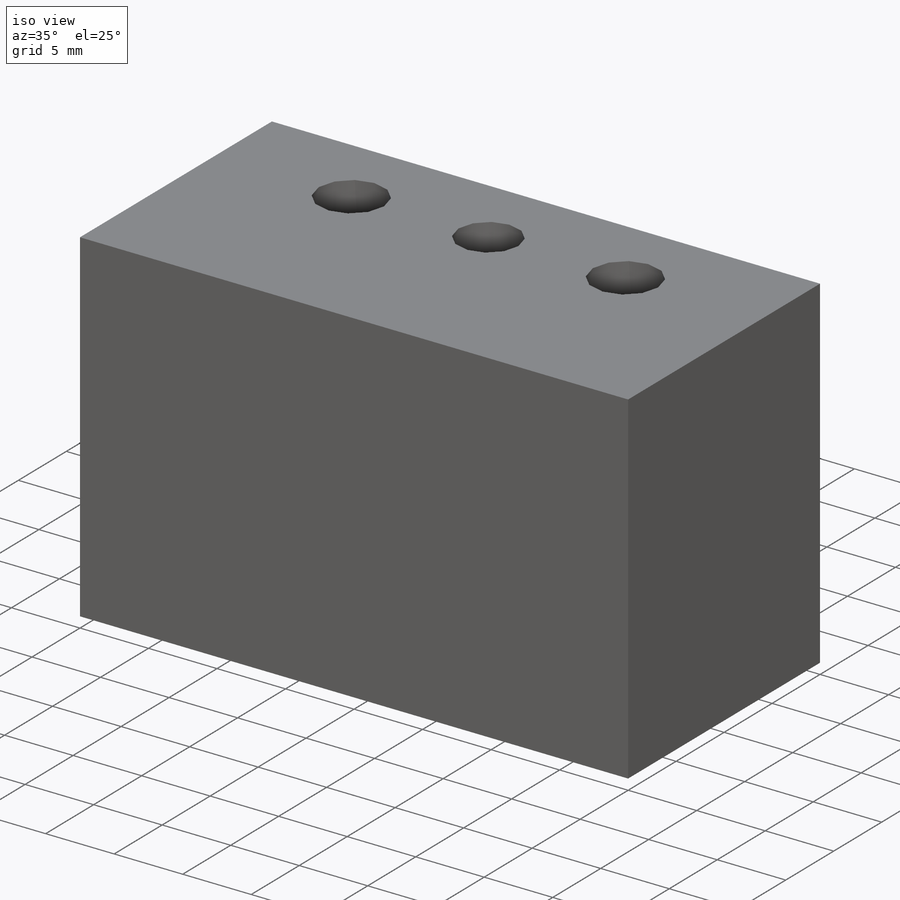
[diagram: iso view]
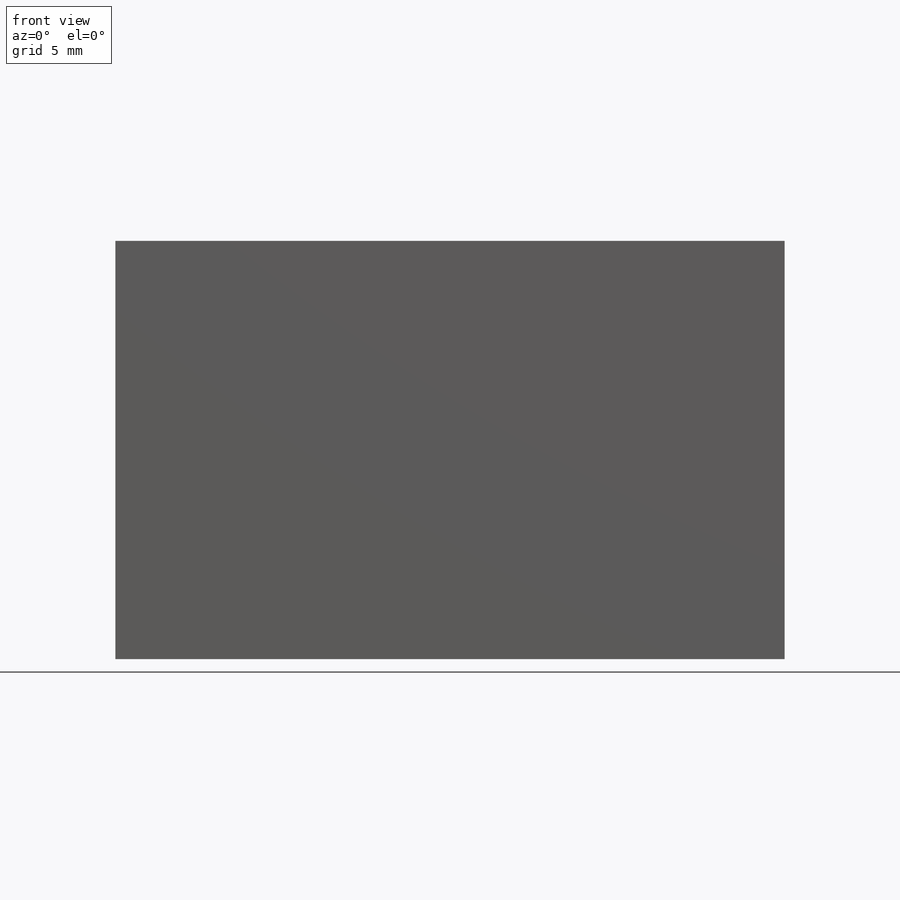
[diagram: front view]
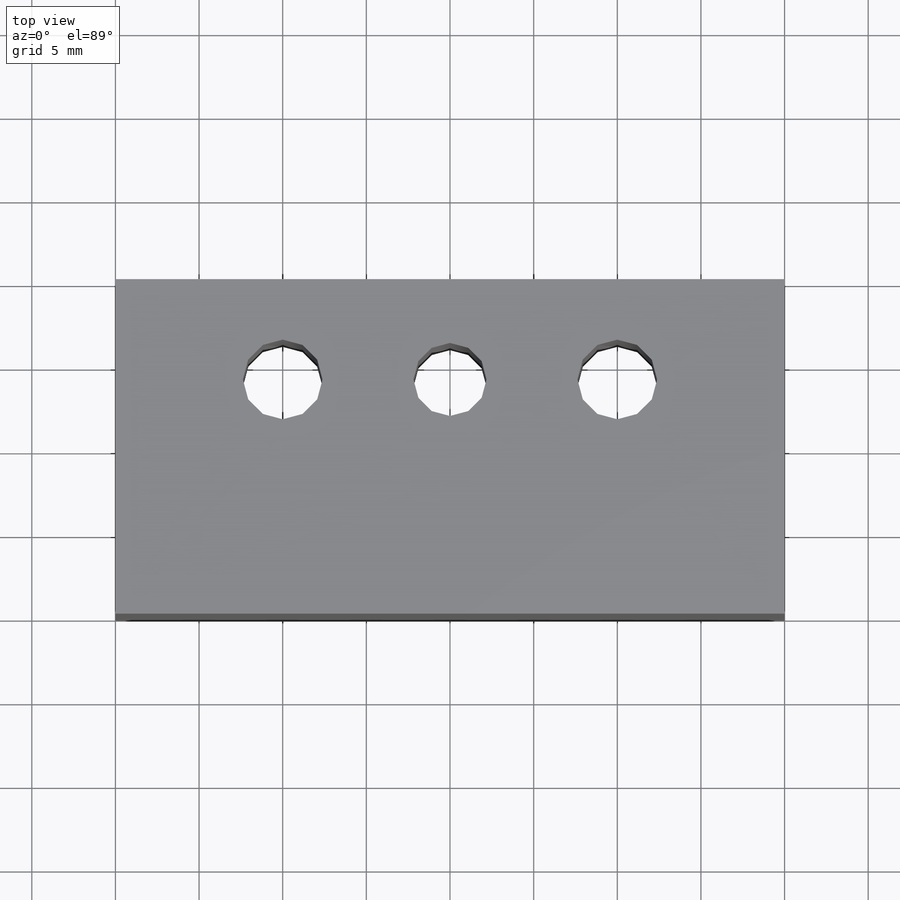
[diagram: top view]
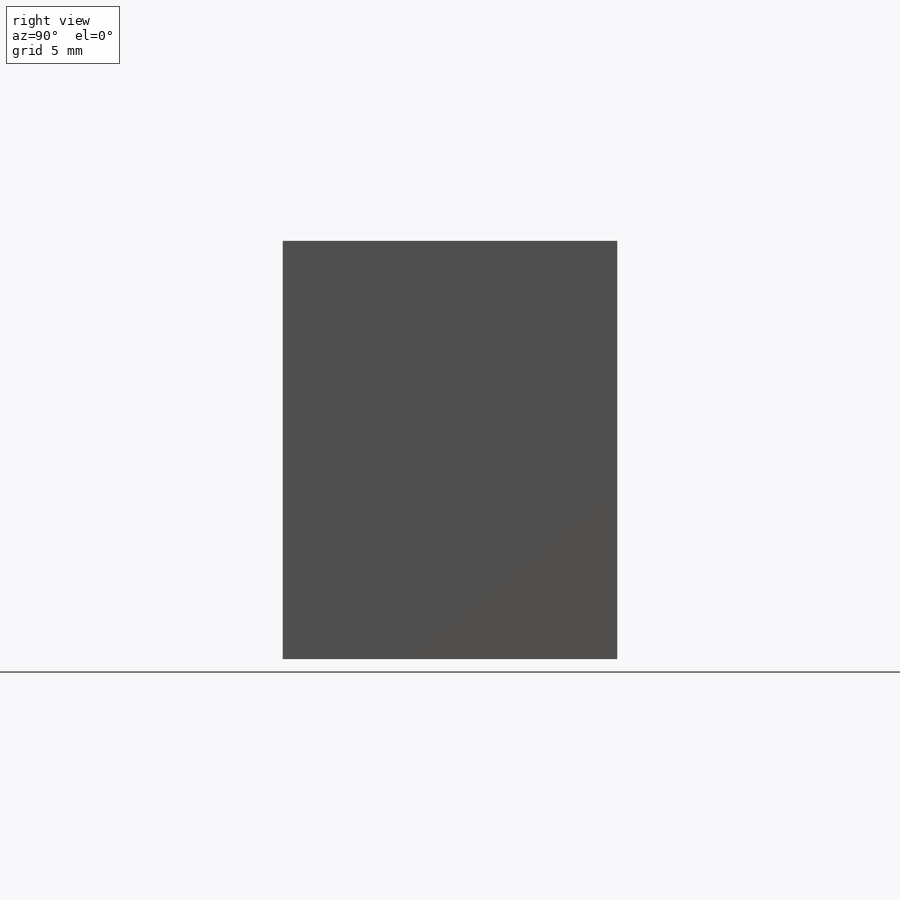
[diagram: right view]
SOLIDWORKS PART (.sldprt)
format: sldprt  version: not decoded by parser v0  size: 176,128 bytes
history: native  units: mm
features: sketch x3, material x1, extrude x1, hole x1 (+11 scaffold rows collapsed)
feature tree (17):
  scaffold x11  (default folders/planes/origin — collapsed)
  material  "Material <not specified>"
  sketch  "Sketch1"  dims[c1.D1=4.76mm c1.D2=4.76mm c1.D3=4.76mm c2.D1=6.0mm c2.D2=20.0mm c2.D3=10.0mm]
  extrude  "Boss-Extrude1"  Depth=25mm
  hole  "11/64 (0.17188) Diameter Hole1"  Diameter=4.365752mm Depth=25mm
  sketch  "Sketch3"  dims[D1=20.0mm D2=6.0mm]
  sketch  "Sketch2"  dims[hole-wizard template sketch: 59 standard entries collapsed; hole parameters kept: c18.Thru Hole Dia.=~4.365752mm c18.Thru Hole Depth=25.0mm]
decode coverage: 5 of 5 modeling features carry decoded parameters
note: ~ marks probable driven/reference dimensions
note: suppression state not decoded; provenance and decode notes live in map.json
